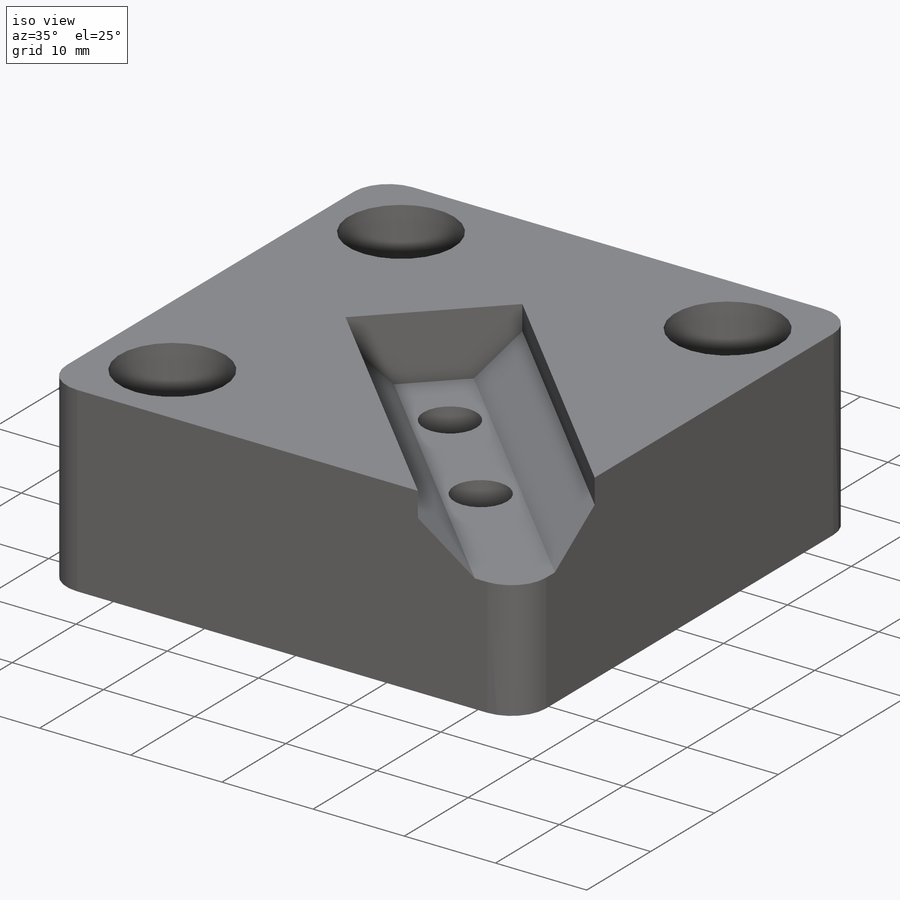
[diagram: iso view]
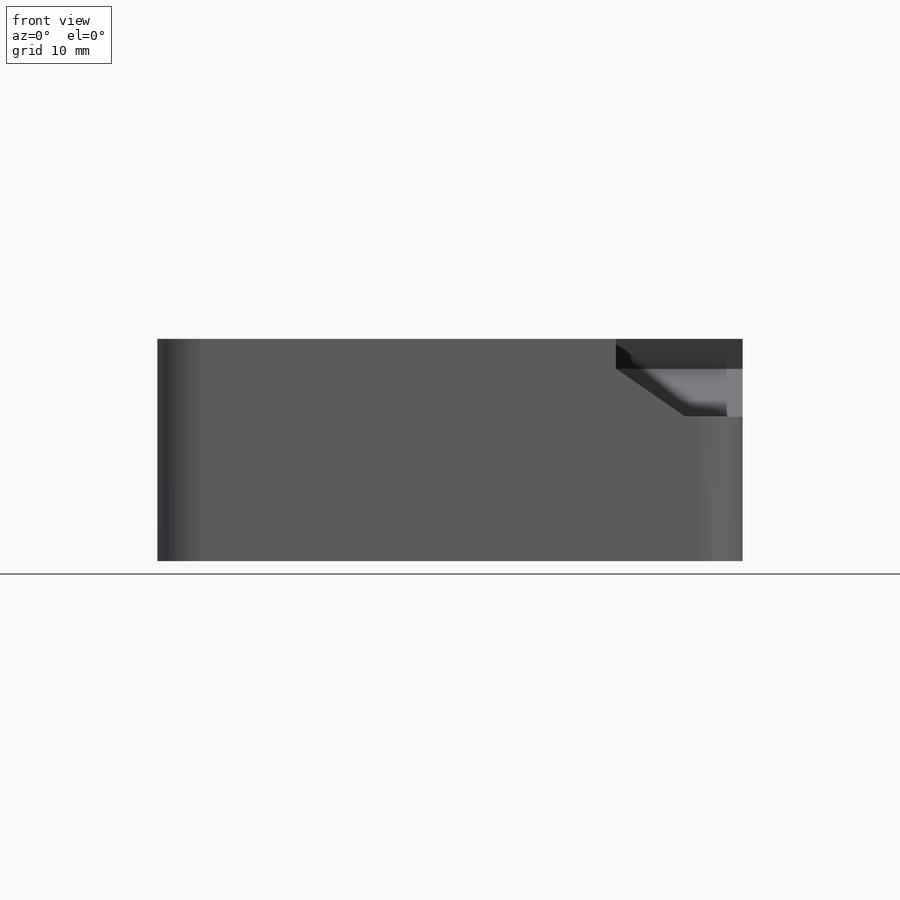
[diagram: front view]
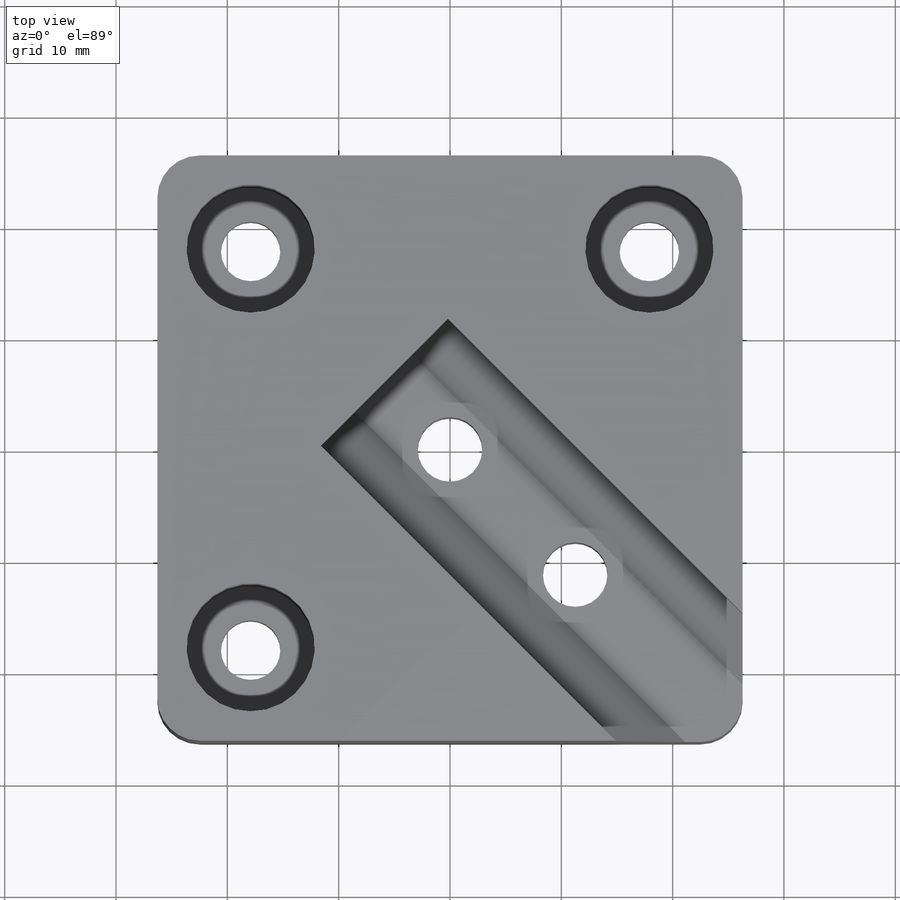
[diagram: top view]
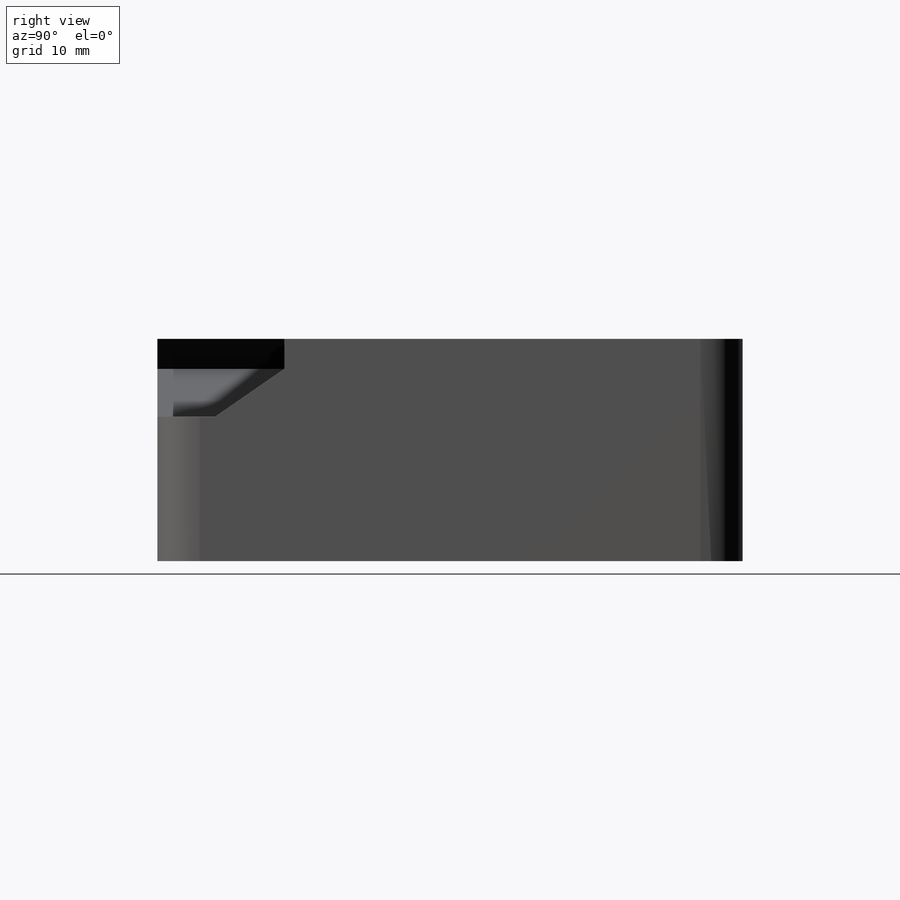
[diagram: right view]
SOLIDWORKS PART (.sldprt)
format: sldprt  version: not decoded by parser v0  size: 285,184 bytes
history: native  units: mm
features: sketch x9, cut_extrude x6, plane x2, material x1, extrude x1, fillet x1 (+15 scaffold rows collapsed)
feature tree (35):
  scaffold x15  (default folders/planes/origin — collapsed)
  material  "Material <not specified>"
  sketch  "Sketch1"  dims[D1=52.578mm D2=52.578mm]
  extrude  "Extrude1"  Depth=19.9644mm
  sketch  "Sketch2"  dims[c1.D1=5.334mm c1.D3=5.2578mm c1.D4=5.2578mm c1.D5=5.334mm c2.D3=5.334mm c2.D2=5.3975mm c2.D6=5.3975mm c2.D7=5.3975mm c3.D2=35.814mm c3.D6=35.7378mm c3.D4=35.7378mm]
  cut_extrude  "Extrude2"  Depth=5.7658mm
  sketch  "Sketch6"  dims[D1=~11.50874mm D2=~11.50874mm D3=11.684mm D4=~11.50874mm]
  cut_extrude  "Extrude4"  Depth=14.1986mm
  plane  "Plane1"
  plane  "Plane2"  Offset=8.3439mm
  sketch  "Sketch10"  dims[c1.D1=16.129mm c1.D2=7.2898mm c2.D1=2.6924mm c2.D2=~7.17931mm c3.D1=2.6924mm c3.D2=4.318mm c3.D3=3.6449mm c3.D4=3.6449mm c3.D5=8.0645mm c3.D6=8.0645mm c3.D7=7.0104mm]
  cut_extrude  "Extrude6"  [1 undecoded]
  sketch  "Sketch15"  dims[D1=5.7912mm D2=5.7912mm D3=~11.24204mm D4=~46.271271mm]
  cut_extrude  "Extrude10"  Depth=7.874mm
  sketch  "Sketch16"  dims[D1=11.811mm D2=11.811mm D3=15.9004mm]
  cut_extrude  "Extrude11"  Depth=5.08mm
  fillet  "Fillet2"  Radius=3.81mm
  sketch  "Sketch11"  dims[D1=5.7912mm D2=5.7912mm D3=15.9004mm]
  sketch  "Sketch14"
  sketch  "Sketch12"  dims[D1=10.16mm D2=10.16mm]
  cut_extrude  "Extrude9"  Depth=5.08mm
decode coverage: 15 of 17 modeling features carry decoded parameters
note: ~ marks probable driven/reference dimensions
note: 1 parameter value undecoded
note: suppression state not decoded; provenance and decode notes live in map.json
